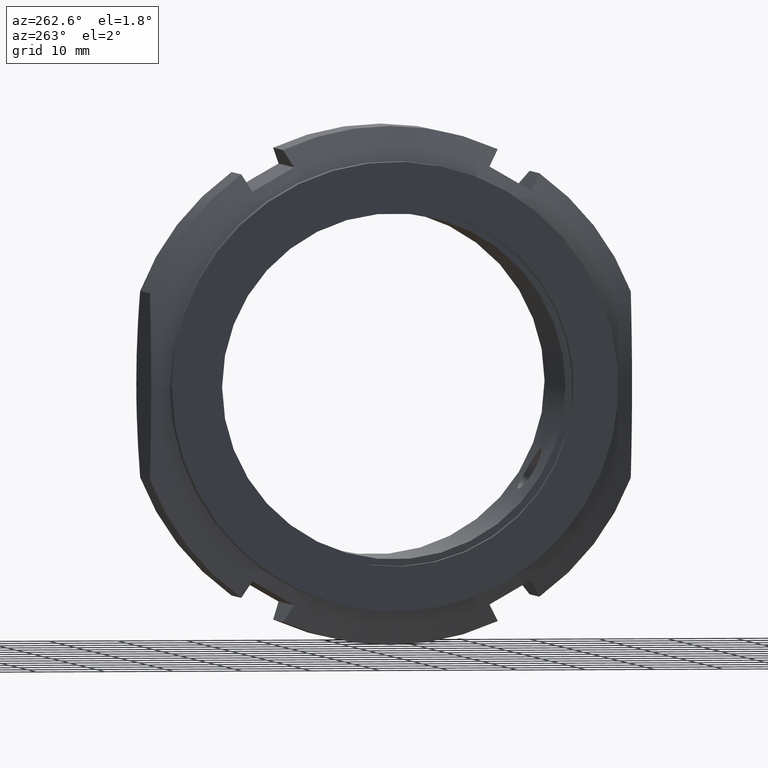
[diagram: clean part render]
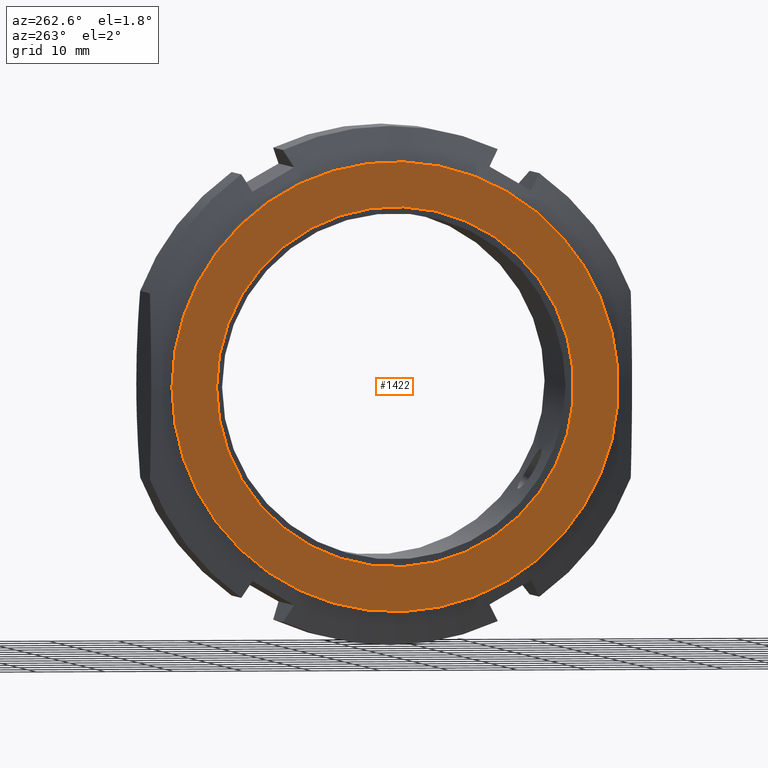
[diagram: same view with one face highlighted and labeled with its STEP entity id]
A machine part, auxiliary view. The second image highlights one B-rep face of the part: STEP entity #1422.
In plain terms, the highlighted planar face has unit normal (-1, 0, 0).
Its self-contained STEP definition (entity closure, byte-faithful):
#1388=CARTESIAN_POINT('',(-6.938894E-015,26.0,0.0));
#1389=VERTEX_POINT('',#1388);
#1390=CARTESIAN_POINT('',(-6.938894E-015,0.0,0.0));
#1391=DIRECTION('',(1.0,0.0,0.0));
#1392=DIRECTION('',(0.0,1.0,0.0));
#1393=AXIS2_PLACEMENT_3D('',#1390,#1391,#1392);
#1394=CIRCLE('',#1393,26.0);
#1395=EDGE_CURVE('',#1389,#1389,#1394,.T.);
#1403=CARTESIAN_POINT('',(-7.910339E-015,29.25,0.0));
#1404=DIRECTION('',(-1.0,0.0,0.0));
#1405=DIRECTION('',(0.0,0.0,1.0));
#1406=AXIS2_PLACEMENT_3D('',#1403,#1404,#1405);
#1407=PLANE('',#1406);
#1408=CARTESIAN_POINT('',(-8.881784E-015,32.499999999999993,0.0));
#1409=VERTEX_POINT('',#1408);
#1410=CARTESIAN_POINT('',(-8.881784E-015,0.0,0.0));
#1411=DIRECTION('',(1.0,0.0,0.0));
#1412=DIRECTION('',(0.0,1.0,0.0));
#1413=AXIS2_PLACEMENT_3D('',#1410,#1411,#1412);
#1414=CIRCLE('',#1413,32.499999999999993);
#1415=EDGE_CURVE('',#1409,#1409,#1414,.T.);
#1416=ORIENTED_EDGE('',*,*,#1415,.F.);
#1417=EDGE_LOOP('',(#1416));
#1418=FACE_OUTER_BOUND('',#1417,.T.);
#1419=ORIENTED_EDGE('',*,*,#1395,.T.);
#1420=EDGE_LOOP('',(#1419));
#1421=FACE_BOUND('',#1420,.T.);
#1422=ADVANCED_FACE('',(#1418,#1421),#1407,.T.);